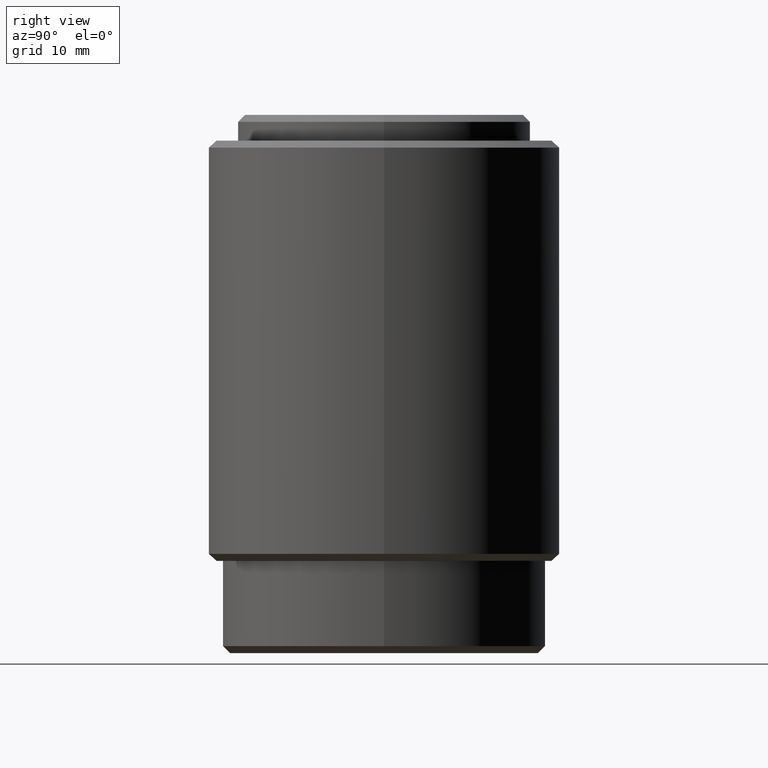
[diagram: clean part render]
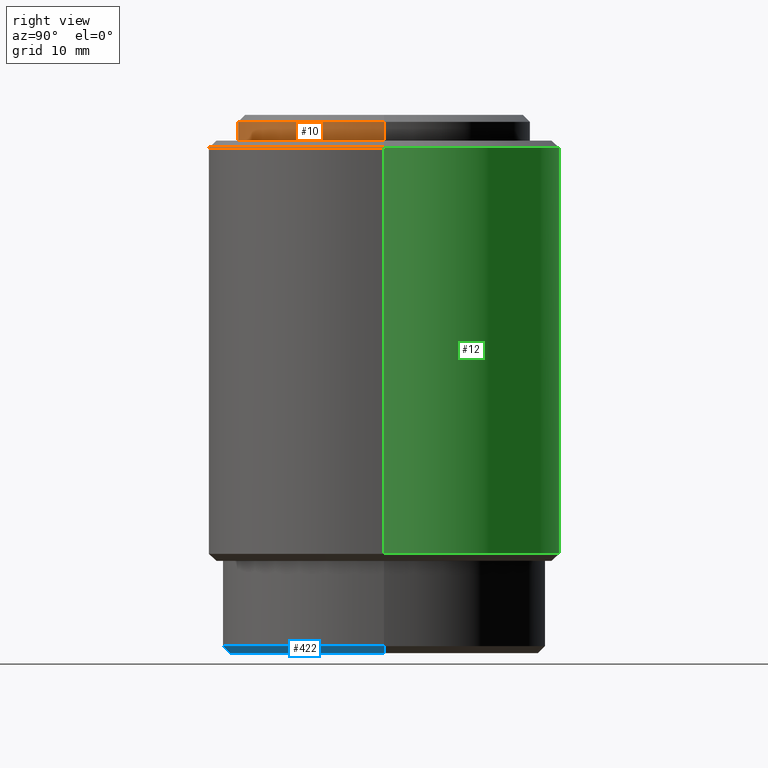
[diagram: same view with three faces highlighted in distinct colors, each labeled with its STEP entity id]
A machine part, right view with three faces highlighted in distinct colors.
Their STEP definitions:

[orange] entity #10 — the highlighted cylindrical surface (partial cylindrical patch) has radius 12.5 mm, axis along (-0, -0, -1).
#10 = ADVANCED_FACE ( 'NONE', ( #173 ), #11, .T. ) ;
#11 = CYLINDRICAL_SURFACE ( 'NONE', #185, 12.50000000000000000 ) ;
#18 = LINE ( 'NONE', #93, #224 ) ;
#34 = CARTESIAN_POINT ( 'NONE',  ( 0.0000000000000000000, 0.0000000000000000000, 45.49999999999997900 ) ) ;
#46 = CARTESIAN_POINT ( 'NONE',  ( -12.50000000000000000, 0.0000000000000000000, 43.89999999999999100 ) ) ;
#50 = AXIS2_PLACEMENT_3D ( 'NONE', #234, #483, #313 ) ;
#61 = EDGE_CURVE ( 'NONE', #532, #249, #209, .T. ) ;
#70 = DIRECTION ( 'NONE',  ( -0.0000000000000000000, -0.0000000000000000000, -1.000000000000000000 ) ) ;
#93 = CARTESIAN_POINT ( 'NONE',  ( 12.50000000000000000, 1.530808498934191500E-015, 46.09999999999999400 ) ) ;
#101 = VECTOR ( 'NONE', #430, 1000.000000000000000 ) ;
#116 = CARTESIAN_POINT ( 'NONE',  ( 0.0000000000000000000, 0.0000000000000000000, 46.09999999999999400 ) ) ;
#129 = CARTESIAN_POINT ( 'NONE',  ( 12.50000000000000000, 1.530808498934191500E-015, 43.89999999999999100 ) ) ;
#136 = EDGE_CURVE ( 'NONE', #249, #270, #344, .T. ) ;
#173 = FACE_OUTER_BOUND ( 'NONE', #262, .T. ) ;
#182 = ORIENTED_EDGE ( 'NONE', *, *, #61, .T. ) ;
#183 = CIRCLE ( 'NONE', #496, 12.50000000000000000 ) ;
#185 = AXIS2_PLACEMENT_3D ( 'NONE', #116, #70, #230 ) ;
#189 = CARTESIAN_POINT ( 'NONE',  ( -12.50000000000000000, 0.0000000000000000000, 46.09999999999999400 ) ) ;
#209 = LINE ( 'NONE', #189, #101 ) ;
#214 = CARTESIAN_POINT ( 'NONE',  ( -12.50000000000000000, 0.0000000000000000000, 45.49999999999997900 ) ) ;
#224 = VECTOR ( 'NONE', #372, 1000.000000000000000 ) ;
#230 = DIRECTION ( 'NONE',  ( -1.000000000000000000, 0.0000000000000000000, 0.0000000000000000000 ) ) ;
#234 = CARTESIAN_POINT ( 'NONE',  ( 0.0000000000000000000, 0.0000000000000000000, 43.89999999999999100 ) ) ;
#249 = VERTEX_POINT ( 'NONE', #46 ) ;
#262 = EDGE_LOOP ( 'NONE', ( #479, #513, #182, #429 ) ) ;
#270 = VERTEX_POINT ( 'NONE', #129 ) ;
#278 = DIRECTION ( 'NONE',  ( 0.0000000000000000000, 0.0000000000000000000, -1.000000000000000000 ) ) ;
#300 = VERTEX_POINT ( 'NONE', #443 ) ;
#313 = DIRECTION ( 'NONE',  ( 1.000000000000000000, 0.0000000000000000000, 0.0000000000000000000 ) ) ;
#344 = CIRCLE ( 'NONE', #50, 12.50000000000000000 ) ;
#372 = DIRECTION ( 'NONE',  ( -0.0000000000000000000, -0.0000000000000000000, -1.000000000000000000 ) ) ;
#379 = EDGE_CURVE ( 'NONE', #300, #532, #183, .T. ) ;
#429 = ORIENTED_EDGE ( 'NONE', *, *, #136, .T. ) ;
#430 = DIRECTION ( 'NONE',  ( -0.0000000000000000000, -0.0000000000000000000, -1.000000000000000000 ) ) ;
#443 = CARTESIAN_POINT ( 'NONE',  ( 12.50000000000000000, 1.530808498934191500E-015, 45.49999999999997900 ) ) ;
#479 = ORIENTED_EDGE ( 'NONE', *, *, #512, .F. ) ;
#483 = DIRECTION ( 'NONE',  ( 0.0000000000000000000, 0.0000000000000000000, 1.000000000000000000 ) ) ;
#496 = AXIS2_PLACEMENT_3D ( 'NONE', #34, #278, #531 ) ;
#512 = EDGE_CURVE ( 'NONE', #300, #270, #18, .T. ) ;
#513 = ORIENTED_EDGE ( 'NONE', *, *, #379, .T. ) ;
#531 = DIRECTION ( 'NONE',  ( 1.000000000000000000, 0.0000000000000000000, 0.0000000000000000000 ) ) ;
#532 = VERTEX_POINT ( 'NONE', #214 ) ;

[blue] entity #422 — the highlighted conical surface has half-angle 45 deg.
#2 = VECTOR ( 'NONE', #477, 1000.000000000000000 ) ;
#25 = EDGE_CURVE ( 'NONE', #463, #308, #434, .T. ) ;
#26 = ORIENTED_EDGE ( 'NONE', *, *, #503, .F. ) ;
#31 = CARTESIAN_POINT ( 'NONE',  ( -13.85000000000000000, 0.0000000000000000000, 0.6000000000000015300 ) ) ;
#62 = VERTEX_POINT ( 'NONE', #472 ) ;
#71 = AXIS2_PLACEMENT_3D ( 'NONE', #314, #535, #283 ) ;
#78 = CARTESIAN_POINT ( 'NONE',  ( 13.24999999999999600, 0.0000000000000000000, 0.0000000000000000000 ) ) ;
#161 = VERTEX_POINT ( 'NONE', #78 ) ;
#167 = DIRECTION ( 'NONE',  ( -0.0000000000000000000, -0.0000000000000000000, 1.000000000000000000 ) ) ;
#174 = DIRECTION ( 'NONE',  ( 0.7071067811865486800, 0.0000000000000000000, 0.7071067811865464600 ) ) ;
#187 = CIRCLE ( 'NONE', #222, 13.85000000000000000 ) ;
#200 = CARTESIAN_POINT ( 'NONE',  ( -13.24999999999999600, 1.659396412844663200E-015, 0.0000000000000000000 ) ) ;
#213 = CARTESIAN_POINT ( 'NONE',  ( 0.0000000000000000000, 0.0000000000000000000, 0.0000000000000000000 ) ) ;
#222 = AXIS2_PLACEMENT_3D ( 'NONE', #410, #167, #451 ) ;
#248 = DIRECTION ( 'NONE',  ( 1.000000000000000000, 0.0000000000000000000, 0.0000000000000000000 ) ) ;
#257 = ORIENTED_EDGE ( 'NONE', *, *, #25, .F. ) ;
#280 = EDGE_LOOP ( 'NONE', ( #257, #26, #376, #507 ) ) ;
#283 = DIRECTION ( 'NONE',  ( 1.000000000000000000, 0.0000000000000000000, 0.0000000000000000000 ) ) ;
#308 = VERTEX_POINT ( 'NONE', #31 ) ;
#314 = CARTESIAN_POINT ( 'NONE',  ( 0.0000000000000000000, 0.0000000000000000000, 0.6000000000000015300 ) ) ;
#316 = VECTOR ( 'NONE', #174, 1000.000000000000000 ) ;
#328 = CARTESIAN_POINT ( 'NONE',  ( 13.85000000000000000, 0.0000000000000000000, 0.6000000000000015300 ) ) ;
#334 = LINE ( 'NONE', #328, #316 ) ;
#343 = CIRCLE ( 'NONE', #352, 13.24999999999999600 ) ;
#352 = AXIS2_PLACEMENT_3D ( 'NONE', #213, #498, #248 ) ;
#376 = ORIENTED_EDGE ( 'NONE', *, *, #526, .T. ) ;
#386 = FACE_OUTER_BOUND ( 'NONE', #280, .T. ) ;
#396 = CARTESIAN_POINT ( 'NONE',  ( -13.85000000000000000, 1.696135816819083800E-015, 0.6000000000000015300 ) ) ;
#410 = CARTESIAN_POINT ( 'NONE',  ( 0.0000000000000000000, 0.0000000000000000000, 0.6000000000000015300 ) ) ;
#422 = ADVANCED_FACE ( 'NONE', ( #386 ), #471, .T. ) ;
#434 = LINE ( 'NONE', #396, #2 ) ;
#440 = EDGE_CURVE ( 'NONE', #308, #62, #187, .T. ) ;
#451 = DIRECTION ( 'NONE',  ( 1.000000000000000000, 0.0000000000000000000, 0.0000000000000000000 ) ) ;
#463 = VERTEX_POINT ( 'NONE', #200 ) ;
#471 = CONICAL_SURFACE ( 'NONE', #71, 13.85000000000000000, 0.7853981633974498300 ) ;
#472 = CARTESIAN_POINT ( 'NONE',  ( 13.85000000000000000, 1.696135816819084000E-015, 0.6000000000000015300 ) ) ;
#477 = DIRECTION ( 'NONE',  ( -0.7071067811865486800, 8.659560562354946400E-017, 0.7071067811865464600 ) ) ;
#498 = DIRECTION ( 'NONE',  ( -0.0000000000000000000, -0.0000000000000000000, -1.000000000000000000 ) ) ;
#503 = EDGE_CURVE ( 'NONE', #161, #463, #343, .T. ) ;
#507 = ORIENTED_EDGE ( 'NONE', *, *, #440, .F. ) ;
#526 = EDGE_CURVE ( 'NONE', #161, #62, #334, .T. ) ;
#535 = DIRECTION ( 'NONE',  ( -0.0000000000000000000, -0.0000000000000000000, 1.000000000000000000 ) ) ;

[green] entity #12 — the highlighted cylindrical surface (partial cylindrical patch) has radius 15 mm, axis along (-0, -0, -1).
#9 = VECTOR ( 'NONE', #491, 1000.000000000000000 ) ;
#12 = ADVANCED_FACE ( 'NONE', ( #21 ), #322, .T. ) ;
#20 = LINE ( 'NONE', #118, #446 ) ;
#21 = FACE_OUTER_BOUND ( 'NONE', #416, .T. ) ;
#24 = DIRECTION ( 'NONE',  ( -1.000000000000000000, 0.0000000000000000000, 0.0000000000000000000 ) ) ;
#28 = CARTESIAN_POINT ( 'NONE',  ( -15.00000000000000000, 0.0000000000000000000, 43.89999999999999100 ) ) ;
#30 = CARTESIAN_POINT ( 'NONE',  ( 0.0000000000000000000, 0.0000000000000000000, 8.500000000000007100 ) ) ;
#44 = AXIS2_PLACEMENT_3D ( 'NONE', #30, #357, #119 ) ;
#45 = DIRECTION ( 'NONE',  ( 0.0000000000000000000, 0.0000000000000000000, -1.000000000000000000 ) ) ;
#74 = CIRCLE ( 'NONE', #44, 15.00000000000000000 ) ;
#88 = EDGE_CURVE ( 'NONE', #168, #103, #20, .T. ) ;
#103 = VERTEX_POINT ( 'NONE', #401 ) ;
#113 = CARTESIAN_POINT ( 'NONE',  ( 0.0000000000000000000, 0.0000000000000000000, 43.89999999999999100 ) ) ;
#118 = CARTESIAN_POINT ( 'NONE',  ( 15.00000000000000000, 1.836970198721029600E-015, 43.89999999999999100 ) ) ;
#119 = DIRECTION ( 'NONE',  ( 1.000000000000000000, 0.0000000000000000000, 0.0000000000000000000 ) ) ;
#144 = EDGE_CURVE ( 'NONE', #335, #391, #219, .T. ) ;
#151 = ORIENTED_EDGE ( 'NONE', *, *, #411, .T. ) ;
#152 = DIRECTION ( 'NONE',  ( -0.0000000000000000000, -0.0000000000000000000, -1.000000000000000000 ) ) ;
#153 = ORIENTED_EDGE ( 'NONE', *, *, #144, .F. ) ;
#168 = VERTEX_POINT ( 'NONE', #286 ) ;
#201 = CARTESIAN_POINT ( 'NONE',  ( -15.00000000000000000, 0.0000000000000000000, 43.29999999999999700 ) ) ;
#203 = DIRECTION ( 'NONE',  ( -0.0000000000000000000, -0.0000000000000000000, -1.000000000000000000 ) ) ;
#219 = LINE ( 'NONE', #28, #9 ) ;
#232 = ORIENTED_EDGE ( 'NONE', *, *, #480, .T. ) ;
#274 = CARTESIAN_POINT ( 'NONE',  ( -15.00000000000000000, 0.0000000000000000000, 8.500000000000007100 ) ) ;
#286 = CARTESIAN_POINT ( 'NONE',  ( 15.00000000000000000, 1.836970198721029600E-015, 43.29999999999999700 ) ) ;
#287 = CARTESIAN_POINT ( 'NONE',  ( 0.0000000000000000000, 0.0000000000000000000, 43.29999999999999700 ) ) ;
#322 = CYLINDRICAL_SURFACE ( 'NONE', #329, 15.00000000000000000 ) ;
#325 = DIRECTION ( 'NONE',  ( 1.000000000000000000, 0.0000000000000000000, 0.0000000000000000000 ) ) ;
#327 = AXIS2_PLACEMENT_3D ( 'NONE', #287, #45, #325 ) ;
#329 = AXIS2_PLACEMENT_3D ( 'NONE', #113, #152, #24 ) ;
#335 = VERTEX_POINT ( 'NONE', #201 ) ;
#340 = ORIENTED_EDGE ( 'NONE', *, *, #88, .T. ) ;
#357 = DIRECTION ( 'NONE',  ( -0.0000000000000000000, -0.0000000000000000000, 1.000000000000000000 ) ) ;
#391 = VERTEX_POINT ( 'NONE', #274 ) ;
#401 = CARTESIAN_POINT ( 'NONE',  ( 15.00000000000000000, 1.836970198721029600E-015, 8.500000000000007100 ) ) ;
#411 = EDGE_CURVE ( 'NONE', #103, #391, #74, .T. ) ;
#416 = EDGE_LOOP ( 'NONE', ( #232, #340, #151, #153 ) ) ;
#446 = VECTOR ( 'NONE', #203, 1000.000000000000000 ) ;
#480 = EDGE_CURVE ( 'NONE', #335, #168, #482, .T. ) ;
#482 = CIRCLE ( 'NONE', #327, 15.00000000000000000 ) ;
#491 = DIRECTION ( 'NONE',  ( -0.0000000000000000000, -0.0000000000000000000, -1.000000000000000000 ) ) ;